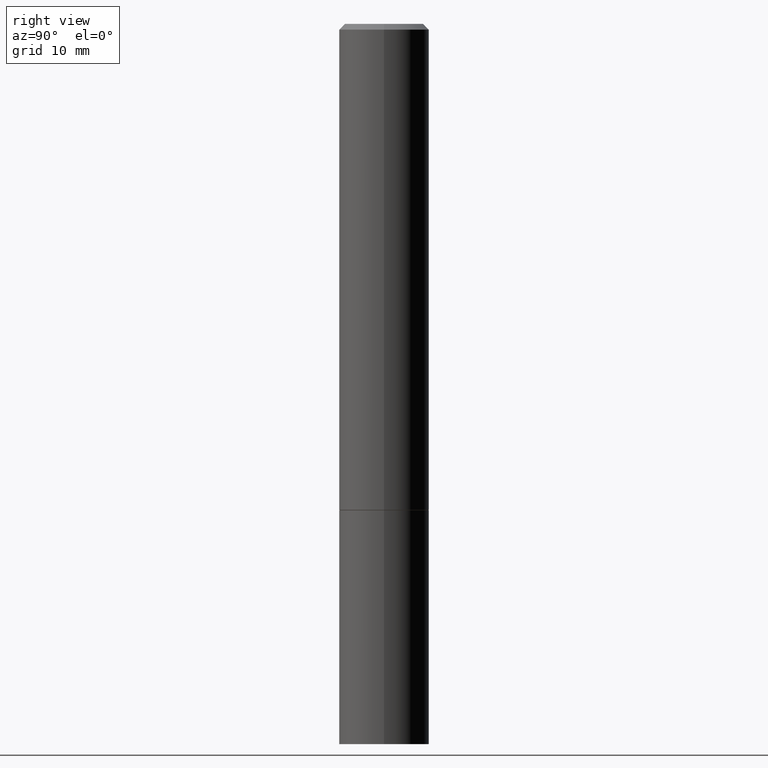
[diagram: clean part render]
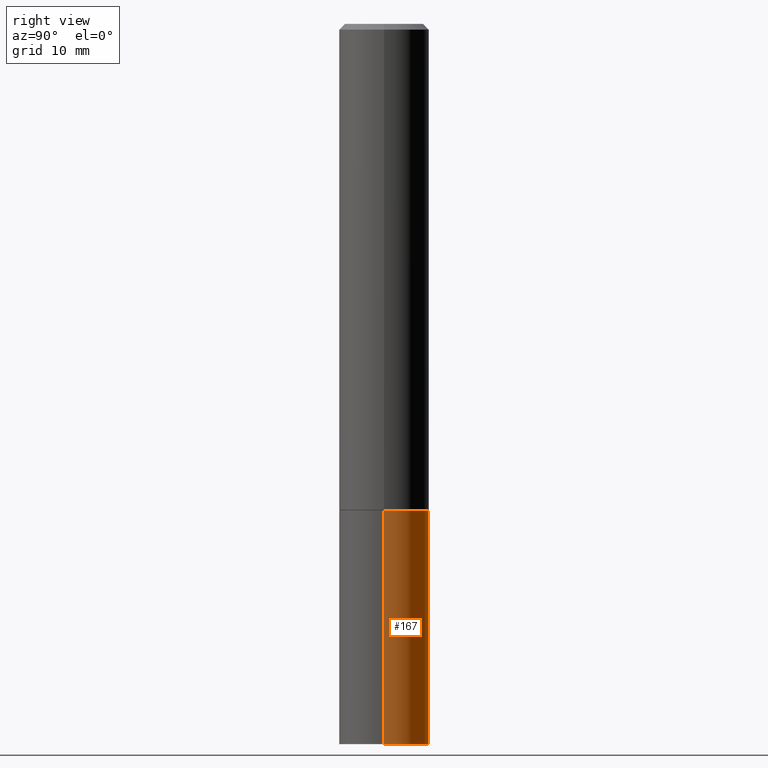
[diagram: same view with one face highlighted and labeled with its STEP entity id]
A machine part, right view. The second image highlights one B-rep face of the part: STEP entity #167.
In plain terms, the highlighted cylindrical surface (partial cylindrical patch) has radius 3.9688 mm, axis along (-0, 0, 1).
Its self-contained STEP definition (entity closure, byte-faithful):
#18 = ORIENTED_EDGE ( 'NONE', *, *, #77, .F. ) ;
#21 = DIRECTION ( 'NONE',  ( -2.445468806185136597E-29, 3.491481338843145583E-15, 1.000000000000000000 ) ) ;
#24 = VERTEX_POINT ( 'NONE', #105 ) ;
#29 = DIRECTION ( 'NONE',  ( -2.445468806185136877E-29, 3.491481338843145188E-15, 1.000000000000000000 ) ) ;
#58 = CARTESIAN_POINT ( 'NONE',  ( -0.1562500000000000000, 1.110223024625156540E-15, -7.685836078523291160E-30 ) ) ;
#66 = VERTEX_POINT ( 'NONE', #350 ) ;
#77 = EDGE_CURVE ( 'NONE', #356, #66, #334, .T. ) ;
#99 = ORIENTED_EDGE ( 'NONE', *, *, #130, .T. ) ;
#101 = DIRECTION ( 'NONE',  ( -2.445468806185136597E-29, 3.491481338843145583E-15, 1.000000000000000000 ) ) ;
#105 = CARTESIAN_POINT ( 'NONE',  ( -0.1562500000000000000, -6.200938898912389918E-15, -1.688000000000000167 ) ) ;
#117 = DIRECTION ( 'NONE',  ( 1.000000000000000000, -6.982962677686269077E-15, 0.000000000000000000 ) ) ;
#121 = CARTESIAN_POINT ( 'NONE',  ( 4.127951344840510809E-29, -5.893620499967230340E-15, -1.688000000000000167 ) ) ;
#127 = CARTESIAN_POINT ( 'NONE',  ( 0.1562500000000000000, -9.819791265496344905E-15, -2.500000000000000000 ) ) ;
#130 = EDGE_CURVE ( 'NONE', #306, #24, #340, .T. ) ;
#135 = DIRECTION ( 'NONE',  ( 1.000000000000000000, -6.982962677686266711E-15, 4.876176775795936353E-29 ) ) ;
#138 = EDGE_CURVE ( 'NONE', #356, #306, #364, .T. ) ;
#160 = FACE_OUTER_BOUND ( 'NONE', #188, .T. ) ;
#167 = ADVANCED_FACE ( 'NONE', ( #160 ), #362, .T. ) ;
#173 = DIRECTION ( 'NONE',  ( -2.445468806185136597E-29, 3.491481338843145583E-15, 1.000000000000000000 ) ) ;
#182 = CIRCLE ( 'NONE', #236, 0.1562500000000000000 ) ;
#188 = EDGE_LOOP ( 'NONE', ( #352, #99, #322, #18 ) ) ;
#200 = CARTESIAN_POINT ( 'NONE',  ( 0.1562500000000000000, -1.091087918388479174E-15, 7.619026212181150377E-30 ) ) ;
#216 = DIRECTION ( 'NONE',  ( 1.000000000000000000, -6.982962677686269077E-15, 0.000000000000000000 ) ) ;
#236 = AXIS2_PLACEMENT_3D ( 'NONE', #121, #101, #216 ) ;
#259 = CARTESIAN_POINT ( 'NONE',  ( 6.113672015462842613E-29, -8.728703347107864943E-15, -2.500000000000000000 ) ) ;
#275 = CARTESIAN_POINT ( 'NONE',  ( 0.000000000000000000, 0.000000000000000000, 0.000000000000000000 ) ) ;
#306 = VERTEX_POINT ( 'NONE', #347 ) ;
#311 = DIRECTION ( 'NONE',  ( -2.445468806185136877E-29, 3.491481338843145188E-15, 1.000000000000000000 ) ) ;
#312 = VECTOR ( 'NONE', #29, 39.37007874015748143 ) ;
#322 = ORIENTED_EDGE ( 'NONE', *, *, #329, .F. ) ;
#329 = EDGE_CURVE ( 'NONE', #66, #24, #182, .T. ) ;
#332 = AXIS2_PLACEMENT_3D ( 'NONE', #275, #21, #135 ) ;
#334 = LINE ( 'NONE', #200, #312 ) ;
#335 = AXIS2_PLACEMENT_3D ( 'NONE', #259, #173, #117 ) ;
#340 = LINE ( 'NONE', #58, #346 ) ;
#346 = VECTOR ( 'NONE', #311, 39.37007874015748143 ) ;
#347 = CARTESIAN_POINT ( 'NONE',  ( -0.1562500000000000000, -6.200938898912389918E-15, -2.500000000000000000 ) ) ;
#350 = CARTESIAN_POINT ( 'NONE',  ( 0.1562500000000000000, -6.984708418355709513E-15, -1.688000000000000167 ) ) ;
#352 = ORIENTED_EDGE ( 'NONE', *, *, #138, .T. ) ;
#356 = VERTEX_POINT ( 'NONE', #127 ) ;
#362 = CYLINDRICAL_SURFACE ( 'NONE', #332, 0.1562500000000000000 ) ;
#364 = CIRCLE ( 'NONE', #335, 0.1562500000000000000 ) ;